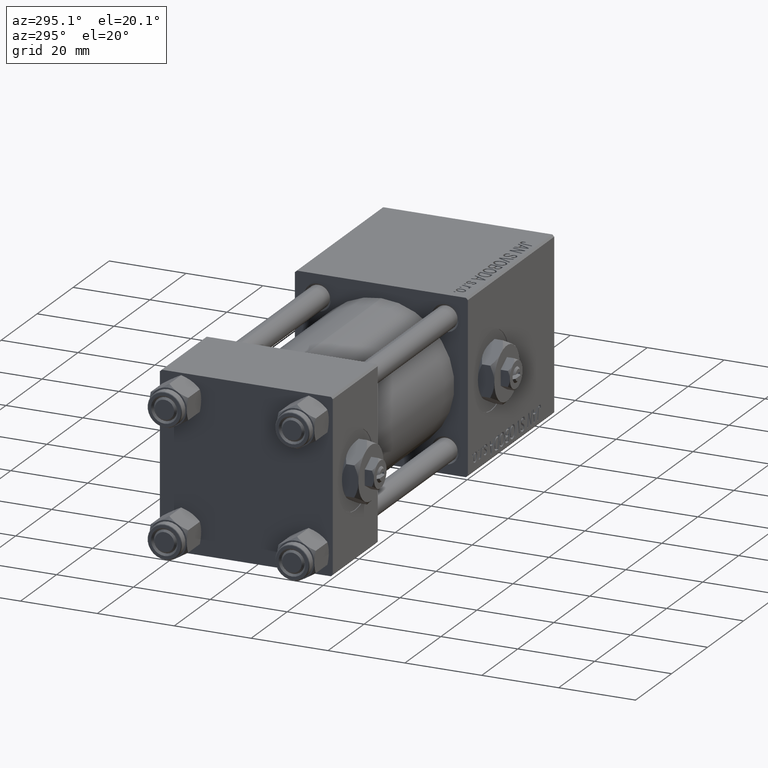
[diagram: clean part render]
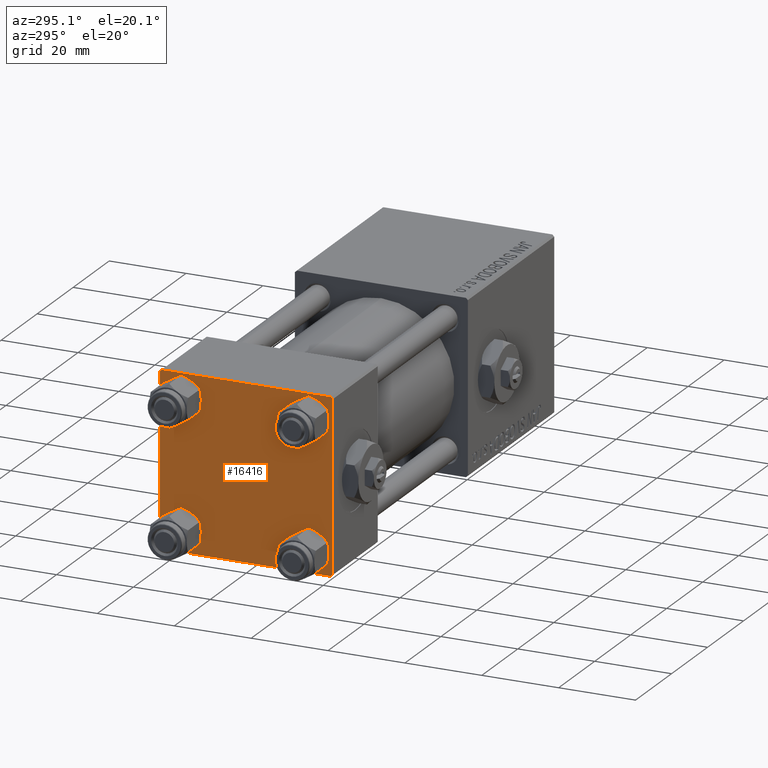
[diagram: same view with one face highlighted and labeled with its STEP entity id]
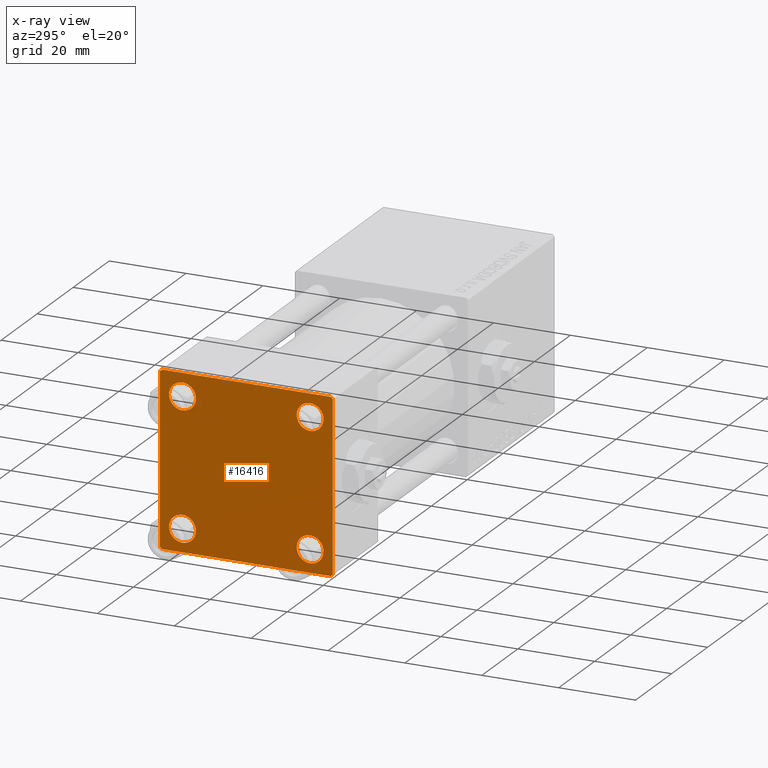
[diagram: x-ray of the same camera — body ghosted, the highlighted face saturated]
A machine part, auxiliary view. The second image highlights one B-rep face of the part: STEP entity #16416.
The next image is the same camera in x-ray: the body ghosted, the highlighted face saturated — about 0% of this face is hidden behind the body in this view.
In plain terms, the highlighted planar face has unit normal (-1, 0, 0).
Its self-contained STEP definition (entity closure, byte-faithful):
#400 = DIRECTION ( 'NONE',  ( 1.000000000000000000, -0.000000000000000000, 0.000000000000000000 ) ) ;
#1030 = FACE_OUTER_BOUND ( 'NONE', #6109, .T. ) ;
#1735 = DIRECTION ( 'NONE',  ( 1.000000000000000000, -0.000000000000000000, 0.000000000000000000 ) ) ;
#2388 = VERTEX_POINT ( 'NONE', #50491 ) ;
#2822 = AXIS2_PLACEMENT_3D ( 'NONE', #7772, #47609, #6978 ) ;
#2832 = CARTESIAN_POINT ( 'NONE',  ( 0.000000000000000000, -22.50000000000000000, -21.99999999999997158 ) ) ;
#2833 = DIRECTION ( 'NONE',  ( 0.000000000000000000, -1.000000000000000000, -7.709882115452476934E-17 ) ) ;
#3695 = DIRECTION ( 'NONE',  ( 0.000000000000000000, 0.000000000000000000, 1.000000000000000000 ) ) ;
#3709 = CARTESIAN_POINT ( 'NONE',  ( 0.000000000000000000, 22.50000000000000000, 22.50000000000000355 ) ) ;
#3758 = DIRECTION ( 'NONE',  ( 0.000000000000000000, -1.000000000000000000, -2.312964634635742957E-16 ) ) ;
#4241 = ORIENTED_EDGE ( 'NONE', *, *, #46893, .T. ) ;
#4748 = FACE_BOUND ( 'NONE', #20548, .T. ) ;
#5574 = EDGE_CURVE ( 'NONE', #23717, #22276, #6927, .T. ) ;
#5674 = CARTESIAN_POINT ( 'NONE',  ( 0.000000000000000000, -16.59999999999999076, 20.10000000000000853 ) ) ;
#5796 = EDGE_CURVE ( 'NONE', #11634, #42613, #12899, .T. ) ;
#6109 = EDGE_LOOP ( 'NONE', ( #7951, #15229, #13948, #49331, #12051, #45566, #6563, #32908 ) ) ;
#6563 = ORIENTED_EDGE ( 'NONE', *, *, #25984, .F. ) ;
#6927 = LINE ( 'NONE', #46514, #27157 ) ;
#6978 = DIRECTION ( 'NONE',  ( 0.000000000000000000, 0.000000000000000000, 1.000000000000000000 ) ) ;
#7291 = ORIENTED_EDGE ( 'NONE', *, *, #16303, .T. ) ;
#7490 = CARTESIAN_POINT ( 'NONE',  ( 0.000000000000000000, -22.50000000000000000, 22.00000000000000000 ) ) ;
#7772 = CARTESIAN_POINT ( 'NONE',  ( 0.000000000000000000, -16.59999999999999076, -16.60000000000000853 ) ) ;
#7951 = ORIENTED_EDGE ( 'NONE', *, *, #17698, .T. ) ;
#8096 = EDGE_CURVE ( 'NONE', #13578, #22276, #27868, .T. ) ;
#8278 = VERTEX_POINT ( 'NONE', #5674 ) ;
#8445 = FACE_BOUND ( 'NONE', #12155, .T. ) ;
#10205 = EDGE_CURVE ( 'NONE', #45488, #13815, #22177, .T. ) ;
#11007 = DIRECTION ( 'NONE',  ( 1.000000000000000000, -0.000000000000000000, 0.000000000000000000 ) ) ;
#11019 = CARTESIAN_POINT ( 'NONE',  ( 0.000000000000000000, 22.50000000000000000, 22.50000000000000355 ) ) ;
#11061 = CARTESIAN_POINT ( 'NONE',  ( 0.000000000000000000, 16.59999999999999787, -16.60000000000000497 ) ) ;
#11123 = DIRECTION ( 'NONE',  ( -0.000000000000000000, 0.7071067811865525687, 0.7071067811865425767 ) ) ;
#11226 = AXIS2_PLACEMENT_3D ( 'NONE', #31912, #51183, #3695 ) ;
#11634 = VERTEX_POINT ( 'NONE', #38536 ) ;
#12046 = CARTESIAN_POINT ( 'NONE',  ( 0.000000000000000000, -22.50000000000000000, 22.50000000000000000 ) ) ;
#12051 = ORIENTED_EDGE ( 'NONE', *, *, #8096, .F. ) ;
#12077 = CARTESIAN_POINT ( 'NONE',  ( 0.000000000000000000, 16.59999999999999787, -20.10000000000000142 ) ) ;
#12145 = PLANE ( 'NONE',  #27452 ) ;
#12155 = EDGE_LOOP ( 'NONE', ( #21469, #4241 ) ) ;
#12657 = DIRECTION ( 'NONE',  ( 0.000000000000000000, 0.000000000000000000, 1.000000000000000000 ) ) ;
#12835 = CARTESIAN_POINT ( 'NONE',  ( 0.000000000000000000, 22.25000000000014566, -22.24999999999984013 ) ) ;
#12899 = CIRCLE ( 'NONE', #17107, 3.499999999999996003 ) ;
#13153 = EDGE_CURVE ( 'NONE', #47701, #2388, #39973, .T. ) ;
#13513 = ORIENTED_EDGE ( 'NONE', *, *, #32486, .T. ) ;
#13578 = VERTEX_POINT ( 'NONE', #7490 ) ;
#13702 = EDGE_LOOP ( 'NONE', ( #42178, #50481 ) ) ;
#13815 = VERTEX_POINT ( 'NONE', #31877 ) ;
#13948 = ORIENTED_EDGE ( 'NONE', *, *, #21568, .T. ) ;
#14516 = VERTEX_POINT ( 'NONE', #49872 ) ;
#14854 = DIRECTION ( 'NONE',  ( 0.000000000000000000, -0.7071067811865426878, 0.7071067811865524577 ) ) ;
#15089 = LINE ( 'NONE', #16597, #28501 ) ;
#15177 = CARTESIAN_POINT ( 'NONE',  ( 0.000000000000000000, -16.59999999999999076, -13.10000000000001030 ) ) ;
#15229 = ORIENTED_EDGE ( 'NONE', *, *, #21448, .T. ) ;
#15898 = CARTESIAN_POINT ( 'NONE',  ( 0.000000000000000000, 22.50000000000000000, -22.49999999999999645 ) ) ;
#16303 = EDGE_CURVE ( 'NONE', #2388, #47701, #41774, .T. ) ;
#16416 = ADVANCED_FACE ( 'NONE', ( #29239, #40638, #8445, #4748, #1030 ), #12145, .T. ) ;
#16597 = CARTESIAN_POINT ( 'NONE',  ( -0.000000000000000000, -22.24999999999984013, 22.25000000000015277 ) ) ;
#16625 = DIRECTION ( 'NONE',  ( -1.000000000000000000, 0.000000000000000000, -0.000000000000000000 ) ) ;
#17107 = AXIS2_PLACEMENT_3D ( 'NONE', #11061, #31369, #35070 ) ;
#17214 = AXIS2_PLACEMENT_3D ( 'NONE', #32061, #400, #27579 ) ;
#17698 = EDGE_CURVE ( 'NONE', #45350, #31876, #28990, .T. ) ;
#18002 = EDGE_CURVE ( 'NONE', #8278, #22191, #18405, .T. ) ;
#18405 = CIRCLE ( 'NONE', #21735, 3.499999999999996003 ) ;
#19101 = AXIS2_PLACEMENT_3D ( 'NONE', #34191, #1735, #34450 ) ;
#20324 = CARTESIAN_POINT ( 'NONE',  ( 0.000000000000000000, 0.000000000000000000, 0.000000000000000000 ) ) ;
#20548 = EDGE_LOOP ( 'NONE', ( #38777, #7291 ) ) ;
#20724 = VECTOR ( 'NONE', #47958, 1000.000000000000114 ) ;
#21448 = EDGE_CURVE ( 'NONE', #31876, #14516, #24702, .T. ) ;
#21469 = ORIENTED_EDGE ( 'NONE', *, *, #5796, .T. ) ;
#21568 = EDGE_CURVE ( 'NONE', #14516, #23717, #51766, .T. ) ;
#21603 = CIRCLE ( 'NONE', #19101, 3.499999999999996003 ) ;
#21735 = AXIS2_PLACEMENT_3D ( 'NONE', #22262, #46270, #49962 ) ;
#22177 = CIRCLE ( 'NONE', #2822, 3.499999999999996003 ) ;
#22191 = VERTEX_POINT ( 'NONE', #25534 ) ;
#22262 = CARTESIAN_POINT ( 'NONE',  ( 0.000000000000000000, -16.59999999999999076, 16.60000000000000853 ) ) ;
#22276 = VERTEX_POINT ( 'NONE', #2832 ) ;
#22530 = CARTESIAN_POINT ( 'NONE',  ( 0.000000000000000000, 16.59999999999999787, 20.10000000000000142 ) ) ;
#23717 = VERTEX_POINT ( 'NONE', #44620 ) ;
#24419 = VECTOR ( 'NONE', #2833, 1000.000000000000000 ) ;
#24702 = LINE ( 'NONE', #12835, #39575 ) ;
#25534 = CARTESIAN_POINT ( 'NONE',  ( 0.000000000000000000, -16.59999999999999076, 13.10000000000001030 ) ) ;
#25614 = VERTEX_POINT ( 'NONE', #37548 ) ;
#25984 = EDGE_CURVE ( 'NONE', #25614, #28545, #30012, .T. ) ;
#27157 = VECTOR ( 'NONE', #14854, 1000.000000000000000 ) ;
#27452 = AXIS2_PLACEMENT_3D ( 'NONE', #20324, #16625, #41148 ) ;
#27579 = DIRECTION ( 'NONE',  ( 0.000000000000000000, 0.000000000000000000, 1.000000000000000000 ) ) ;
#27868 = LINE ( 'NONE', #12046, #41517 ) ;
#27967 = DIRECTION ( 'NONE',  ( 0.000000000000000000, 0.000000000000000000, -1.000000000000000000 ) ) ;
#28501 = VECTOR ( 'NONE', #11123, 999.9999999999998863 ) ;
#28545 = VERTEX_POINT ( 'NONE', #33913 ) ;
#28990 = LINE ( 'NONE', #3709, #31770 ) ;
#29239 = FACE_BOUND ( 'NONE', #13702, .T. ) ;
#29318 = EDGE_LOOP ( 'NONE', ( #37782, #13513 ) ) ;
#29740 = CIRCLE ( 'NONE', #11226, 3.499999999999996003 ) ;
#30012 = LINE ( 'NONE', #11019, #24419 ) ;
#31369 = DIRECTION ( 'NONE',  ( 1.000000000000000000, -0.000000000000000000, 0.000000000000000000 ) ) ;
#31565 = AXIS2_PLACEMENT_3D ( 'NONE', #34751, #11007, #43724 ) ;
#31770 = VECTOR ( 'NONE', #27967, 1000.000000000000000 ) ;
#31855 = LINE ( 'NONE', #52167, #20724 ) ;
#31876 = VERTEX_POINT ( 'NONE', #31906 ) ;
#31877 = CARTESIAN_POINT ( 'NONE',  ( 0.000000000000000000, -16.59999999999999076, -20.10000000000000497 ) ) ;
#31906 = CARTESIAN_POINT ( 'NONE',  ( 0.000000000000000000, 22.50000000000000000, -21.99999999999996803 ) ) ;
#31912 = CARTESIAN_POINT ( 'NONE',  ( 0.000000000000000000, -16.59999999999999076, -16.60000000000000853 ) ) ;
#32061 = CARTESIAN_POINT ( 'NONE',  ( 0.000000000000000000, 16.59999999999999787, 16.60000000000000497 ) ) ;
#32486 = EDGE_CURVE ( 'NONE', #13815, #45488, #29740, .T. ) ;
#32908 = ORIENTED_EDGE ( 'NONE', *, *, #42692, .T. ) ;
#33913 = CARTESIAN_POINT ( 'NONE',  ( 0.000000000000000000, -21.99999999999997868, 22.50000000000000000 ) ) ;
#34191 = CARTESIAN_POINT ( 'NONE',  ( 0.000000000000000000, 16.59999999999999787, -16.60000000000000497 ) ) ;
#34450 = DIRECTION ( 'NONE',  ( 0.000000000000000000, 0.000000000000000000, 1.000000000000000000 ) ) ;
#34751 = CARTESIAN_POINT ( 'NONE',  ( 0.000000000000000000, -16.59999999999999076, 16.60000000000000853 ) ) ;
#35070 = DIRECTION ( 'NONE',  ( 0.000000000000000000, 0.000000000000000000, 1.000000000000000000 ) ) ;
#36150 = CARTESIAN_POINT ( 'NONE',  ( 0.000000000000000000, 16.59999999999999787, 16.60000000000000497 ) ) ;
#36327 = DIRECTION ( 'NONE',  ( -0.000000000000000000, -0.7071067811865426878, -0.7071067811865524577 ) ) ;
#36661 = CIRCLE ( 'NONE', #31565, 3.499999999999996003 ) ;
#37036 = VECTOR ( 'NONE', #3758, 1000.000000000000000 ) ;
#37548 = CARTESIAN_POINT ( 'NONE',  ( 0.000000000000000000, 21.99999999999999289, 22.50000000000000355 ) ) ;
#37782 = ORIENTED_EDGE ( 'NONE', *, *, #10205, .T. ) ;
#38536 = CARTESIAN_POINT ( 'NONE',  ( 0.000000000000000000, 16.59999999999999787, -13.10000000000000675 ) ) ;
#38777 = ORIENTED_EDGE ( 'NONE', *, *, #13153, .T. ) ;
#39575 = VECTOR ( 'NONE', #36327, 1000.000000000000000 ) ;
#39973 = CIRCLE ( 'NONE', #17214, 3.499999999999996003 ) ;
#40638 = FACE_BOUND ( 'NONE', #29318, .T. ) ;
#41148 = DIRECTION ( 'NONE',  ( -0.000000000000000000, 0.000000000000000000, 1.000000000000000000 ) ) ;
#41470 = EDGE_CURVE ( 'NONE', #22191, #8278, #36661, .T. ) ;
#41517 = VECTOR ( 'NONE', #44241, 1000.000000000000000 ) ;
#41774 = CIRCLE ( 'NONE', #48524, 3.499999999999996003 ) ;
#42178 = ORIENTED_EDGE ( 'NONE', *, *, #18002, .T. ) ;
#42360 = CARTESIAN_POINT ( 'NONE',  ( 0.000000000000000000, 22.50000000000000000, 21.99999999999999645 ) ) ;
#42613 = VERTEX_POINT ( 'NONE', #12077 ) ;
#42692 = EDGE_CURVE ( 'NONE', #25614, #45350, #31855, .T. ) ;
#43724 = DIRECTION ( 'NONE',  ( 0.000000000000000000, 0.000000000000000000, 1.000000000000000000 ) ) ;
#44241 = DIRECTION ( 'NONE',  ( 0.000000000000000000, 0.000000000000000000, -1.000000000000000000 ) ) ;
#44620 = CARTESIAN_POINT ( 'NONE',  ( 0.000000000000000000, -21.99999999999997158, -22.50000000000000711 ) ) ;
#45350 = VERTEX_POINT ( 'NONE', #42360 ) ;
#45488 = VERTEX_POINT ( 'NONE', #15177 ) ;
#45566 = ORIENTED_EDGE ( 'NONE', *, *, #51623, .T. ) ;
#46270 = DIRECTION ( 'NONE',  ( 1.000000000000000000, -0.000000000000000000, 0.000000000000000000 ) ) ;
#46514 = CARTESIAN_POINT ( 'NONE',  ( 0.000000000000000000, -22.25000000000014566, -22.24999999999984013 ) ) ;
#46893 = EDGE_CURVE ( 'NONE', #42613, #11634, #21603, .T. ) ;
#47244 = DIRECTION ( 'NONE',  ( 1.000000000000000000, -0.000000000000000000, 0.000000000000000000 ) ) ;
#47609 = DIRECTION ( 'NONE',  ( 1.000000000000000000, -0.000000000000000000, 0.000000000000000000 ) ) ;
#47701 = VERTEX_POINT ( 'NONE', #22530 ) ;
#47958 = DIRECTION ( 'NONE',  ( 0.000000000000000000, 0.7071067811865474617, -0.7071067811865474617 ) ) ;
#48524 = AXIS2_PLACEMENT_3D ( 'NONE', #36150, #47244, #12657 ) ;
#49331 = ORIENTED_EDGE ( 'NONE', *, *, #5574, .T. ) ;
#49872 = CARTESIAN_POINT ( 'NONE',  ( 0.000000000000000000, 21.99999999999999289, -22.49999999999999645 ) ) ;
#49962 = DIRECTION ( 'NONE',  ( 0.000000000000000000, 0.000000000000000000, 1.000000000000000000 ) ) ;
#50481 = ORIENTED_EDGE ( 'NONE', *, *, #41470, .T. ) ;
#50491 = CARTESIAN_POINT ( 'NONE',  ( 0.000000000000000000, 16.59999999999999787, 13.10000000000000675 ) ) ;
#51183 = DIRECTION ( 'NONE',  ( 1.000000000000000000, -0.000000000000000000, 0.000000000000000000 ) ) ;
#51623 = EDGE_CURVE ( 'NONE', #13578, #28545, #15089, .T. ) ;
#51766 = LINE ( 'NONE', #15898, #37036 ) ;
#52167 = CARTESIAN_POINT ( 'NONE',  ( 0.000000000000000000, 22.24999999999999645, 22.24999999999999645 ) ) ;